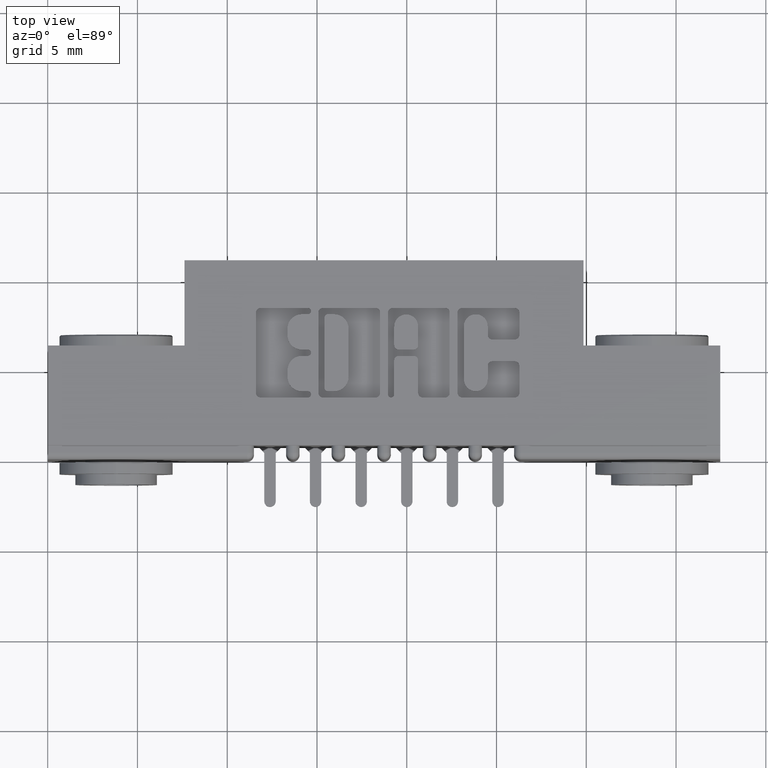
[diagram: clean part render]
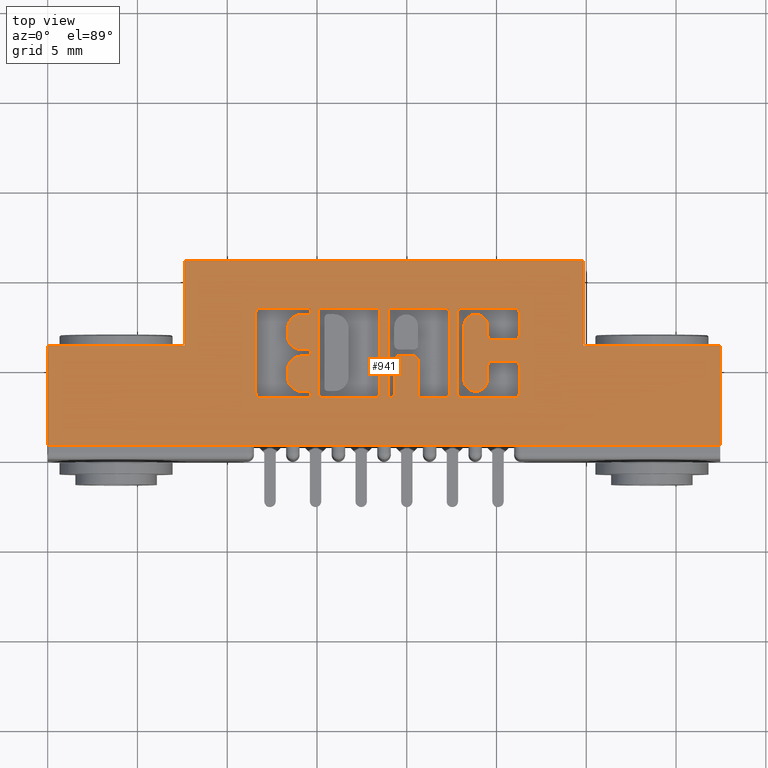
[diagram: same view with one face highlighted and labeled with its STEP entity id]
A machine part, top view. The second image highlights one B-rep face of the part: STEP entity #941.
In plain terms, the highlighted planar face has unit normal (0, 0, -1).
Its self-contained STEP definition (entity closure, byte-faithful):
#33 = DIRECTION ( 'NONE',  ( -1.000000000000000000, 0.0000000000000000000, 0.0000000000000000000 ) ) ;
#66 = LINE ( 'NONE', #6796, #11085 ) ;
#110 = CARTESIAN_POINT ( 'NONE',  ( 1.474999999999999900, 0.2500000000000000000, 0.0000000000000000000 ) ) ;
#117 = DIRECTION ( 'NONE',  ( 0.0000000000000000000, 1.000000000000000000, -0.0000000000000000000 ) ) ;
#128 = CIRCLE ( 'NONE', #9731, 0.009815670203805868300 ) ;
#141 = AXIS2_PLACEMENT_3D ( 'NONE', #12786, #3214, #12714 ) ;
#144 = VECTOR ( 'NONE', #1671, 39.37007874015748100 ) ;
#221 = DIRECTION ( 'NONE',  ( 1.000000000000000000, 0.0000000000000000000, 0.0000000000000000000 ) ) ;
#227 = CARTESIAN_POINT ( 'NONE',  ( 0.8221601555077857600, 0.1358432979619863500, 0.0000000000000000000 ) ) ;
#265 = DIRECTION ( 'NONE',  ( 1.000000000000000000, 0.0000000000000000000, 0.0000000000000000000 ) ) ;
#281 = DIRECTION ( 'NONE',  ( 0.0000000000000000000, -1.000000000000000000, 0.0000000000000000000 ) ) ;
#282 = CARTESIAN_POINT ( 'NONE',  ( 1.024362961706156700, 0.2153502266127593200, 0.0000000000000000000 ) ) ;
#299 = CIRCLE ( 'NONE', #9561, 0.006870969142648501700 ) ;
#321 = PLANE ( 'NONE',  #141 ) ;
#341 = CARTESIAN_POINT ( 'NONE',  ( 0.9085380533012653600, 0.1456589681657917100, 0.0000000000000000000 ) ) ;
#387 = LINE ( 'NONE', #2262, #144 ) ;
#477 = CARTESIAN_POINT ( 'NONE',  ( -0.0000000000000000000, 0.1358432979619849400, 0.0000000000000000000 ) ) ;
#508 = ORIENTED_EDGE ( 'NONE', *, *, #4367, .F. ) ;
#515 = VERTEX_POINT ( 'NONE', #1427 ) ;
#544 = CIRCLE ( 'NONE', #9739, 0.006870969142662229500 ) ;
#572 = VERTEX_POINT ( 'NONE', #3741 ) ;
#585 = CARTESIAN_POINT ( 'NONE',  ( 0.5571370600051254200, 0.3184147637527374200, 0.0000000000000000000 ) ) ;
#611 = DIRECTION ( 'NONE',  ( -1.000000000000000000, -3.427012734660361200E-014, 0.0000000000000000000 ) ) ;
#618 = VERTEX_POINT ( 'NONE', #11272 ) ;
#638 = LINE ( 'NONE', #3824, #6805 ) ;
#661 = CARTESIAN_POINT ( 'NONE',  ( 0.5934550397591692400, 0.3223410318342118700, 0.0000000000000000000 ) ) ;
#663 = DIRECTION ( 'NONE',  ( 1.000000000000000000, 0.0000000000000000000, 0.0000000000000000000 ) ) ;
#674 = DIRECTION ( 'NONE',  ( -0.0000000000000000000, 0.0000000000000000000, 1.000000000000000000 ) ) ;
#722 = CARTESIAN_POINT ( 'NONE',  ( 0.8025288151001878100, 0.2173133606535545500, 0.0000000000000000000 ) ) ;
#731 = CARTESIAN_POINT ( 'NONE',  ( 0.4565264404161154500, 0.0000000000000000000, 0.0000000000000000000 ) ) ;
#765 = DIRECTION ( 'NONE',  ( 1.000000000000000000, 0.0000000000000000000, 0.0000000000000000000 ) ) ;
#780 = VERTEX_POINT ( 'NONE', #10994 ) ;
#807 = ORIENTED_EDGE ( 'NONE', *, *, #4434, .F. ) ;
#838 = CARTESIAN_POINT ( 'NONE',  ( 0.4565264404161154500, 0.3223410318342118700, 0.0000000000000000000 ) ) ;
#848 = VECTOR ( 'NONE', #8968, 39.37007874015748100 ) ;
#894 = CIRCLE ( 'NONE', #9876, 0.03141014465218178200 ) ;
#908 = CARTESIAN_POINT ( 'NONE',  ( 1.024362961706153200, 0.2055345564089722000, 0.0000000000000000000 ) ) ;
#912 = LINE ( 'NONE', #8986, #848 ) ;
#925 = VERTEX_POINT ( 'NONE', #3194 ) ;
#940 = CARTESIAN_POINT ( 'NONE',  ( -7.783740811591157300E-015, 0.2271290308573240500, 0.0000000000000000000 ) ) ;
#941 = ADVANCED_FACE ( 'NONE', ( #3421, #3688, #3392, #3260, #3198 ), #321, .F. ) ;
#944 = CARTESIAN_POINT ( 'NONE',  ( 0.7696463199174502500, 0.2271290308573504200, 0.0000000000000000000 ) ) ;
#1027 = DIRECTION ( 'NONE',  ( 1.000000000000000000, 0.0000000000000000000, 0.0000000000000000000 ) ) ;
#1037 = LINE ( 'NONE', #4303, #1846 ) ;
#1044 = DIRECTION ( 'NONE',  ( -0.0000000000000000000, 0.0000000000000000000, 1.000000000000000000 ) ) ;
#1047 = DIRECTION ( 'NONE',  ( -1.000000000000000000, 0.0000000000000000000, 0.0000000000000000000 ) ) ;
#1050 = CIRCLE ( 'NONE', #8831, 0.009815670203840902800 ) ;
#1068 = VECTOR ( 'NONE', #5166, 39.37007874015748100 ) ;
#1082 = CARTESIAN_POINT ( 'NONE',  ( 0.5775045756779998400, 0.3252857328953879800, 0.0000000000000000000 ) ) ;
#1132 = CARTESIAN_POINT ( 'NONE',  ( 0.4663421106199222000, 0.1456589681657917100, 0.0000000000000000000 ) ) ;
#1142 = DIRECTION ( 'NONE',  ( 1.000000000000000000, 0.0000000000000000000, 0.0000000000000000000 ) ) ;
#1144 = VECTOR ( 'NONE', #10899, 39.37007874015748100 ) ;
#1181 = DIRECTION ( 'NONE',  ( -0.0000000000000000000, 0.0000000000000000000, 1.000000000000000000 ) ) ;
#1197 = CARTESIAN_POINT ( 'NONE',  ( 0.7190956183678621800, 0.1456589681657917100, 0.0000000000000000000 ) ) ;
#1255 = DIRECTION ( 'NONE',  ( -0.0000000000000000000, 0.0000000000000000000, 1.000000000000000000 ) ) ;
#1256 = LINE ( 'NONE', #11013, #1144 ) ;
#1258 = EDGE_CURVE ( 'NONE', #2586, #7496, #12343, .T. ) ;
#1337 = DIRECTION ( 'NONE',  ( -0.0000000000000000000, 0.0000000000000000000, 1.000000000000000000 ) ) ;
#1427 = CARTESIAN_POINT ( 'NONE',  ( 0.5775045756779735300, 0.2340000000000221100, 0.0000000000000000000 ) ) ;
#1461 = CARTESIAN_POINT ( 'NONE',  ( -0.0000000000000000000, 0.1358432979619849400, 0.0000000000000000000 ) ) ;
#1462 = LINE ( 'NONE', #4976, #1068 ) ;
#1505 = DIRECTION ( 'NONE',  ( 0.0000000000000000000, 1.000000000000000000, -0.0000000000000000000 ) ) ;
#1512 = DIRECTION ( 'NONE',  ( -0.0000000000000000000, 0.0000000000000000000, 1.000000000000000000 ) ) ;
#1544 = CARTESIAN_POINT ( 'NONE',  ( 0.7289112885716689800, 0.0000000000000000000, 0.0000000000000000000 ) ) ;
#1560 = CARTESIAN_POINT ( 'NONE',  ( 1.474999999999999900, 0.03100000000000003800, -6.829619984160658000E-017 ) ) ;
#1590 = CARTESIAN_POINT ( 'NONE',  ( 0.9747938271769670500, 0.2055345564089713100, 0.0000000000000000000 ) ) ;
#1636 = CARTESIAN_POINT ( 'NONE',  ( 0.9124643213828184100, 0.0000000000000000000, 0.0000000000000000000 ) ) ;
#1671 = DIRECTION ( 'NONE',  ( 1.000000000000000000, 6.876017002796120400E-015, 0.0000000000000000000 ) ) ;
#1726 = CARTESIAN_POINT ( 'NONE',  ( 0.9747938271769776000, 0.2727718973050469700, 0.0000000000000000000 ) ) ;
#1737 = ORIENTED_EDGE ( 'NONE', *, *, #3396, .F. ) ;
#1825 = CIRCLE ( 'NONE', #8107, 0.009815670203796511200 ) ;
#1846 = VECTOR ( 'NONE', #4245, 39.37007874015748100 ) ;
#1871 = VERTEX_POINT ( 'NONE', #10935 ) ;
#1907 = EDGE_LOOP ( 'NONE', ( #5786, #8278, #10205, #10430, #3225, #5997, #7012, #9164, #10955, #11898, #5125, #4279, #5473, #11957, #2570, #2928, #5519, #12710, #1737, #2791 ) ) ;
#1990 = DIRECTION ( 'NONE',  ( 1.000000000000000000, 0.0000000000000000000, 0.0000000000000000000 ) ) ;
#1993 = CIRCLE ( 'NONE', #7226, 0.006870969142663527000 ) ;
#2040 = DIRECTION ( 'NONE',  ( -0.0000000000000000000, 0.0000000000000000000, 1.000000000000000000 ) ) ;
#2062 = CARTESIAN_POINT ( 'NONE',  ( 0.8123444853039847300, 0.0000000000000000000, 0.0000000000000000000 ) ) ;
#2101 = DIRECTION ( 'NONE',  ( 0.0000000000000000000, 1.000000000000000000, -0.0000000000000000000 ) ) ;
#2117 = DIRECTION ( 'NONE',  ( 1.000000000000000000, 0.0000000000000000000, 0.0000000000000000000 ) ) ;
#2119 = CARTESIAN_POINT ( 'NONE',  ( 0.0000000000000000000, 0.2500000000000000000, 0.0000000000000000000 ) ) ;
#2122 = EDGE_CURVE ( 'NONE', #925, #8673, #10608, .T. ) ;
#2140 = CIRCLE ( 'NONE', #10087, 0.03141014465215624000 ) ;
#2178 = ORIENTED_EDGE ( 'NONE', *, *, #4344, .F. ) ;
#2192 = ORIENTED_EDGE ( 'NONE', *, *, #4326, .F. ) ;
#2205 = CARTESIAN_POINT ( 'NONE',  ( 0.5706336065353355700, 0.1427142671046497100, 0.0000000000000000000 ) ) ;
#2222 = DIRECTION ( 'NONE',  ( 1.000000000000000000, 0.0000000000000000000, 0.0000000000000000000 ) ) ;
#2252 = VERTEX_POINT ( 'NONE', #11694 ) ;
#2262 = CARTESIAN_POINT ( 'NONE',  ( -9.340608265024984900E-016, 0.1358432979619835200, 0.0000000000000000000 ) ) ;
#2279 = DIRECTION ( 'NONE',  ( -0.0000000000000000000, 0.0000000000000000000, 1.000000000000000000 ) ) ;
#2282 = CARTESIAN_POINT ( 'NONE',  ( 0.7190956183678279800, 0.3223410318342117000, 0.0000000000000000000 ) ) ;
#2305 = VECTOR ( 'NONE', #7698, 39.37007874015748100 ) ;
#2320 = CARTESIAN_POINT ( 'NONE',  ( 0.0000000000000000000, 0.3321567020380528100, 0.0000000000000000000 ) ) ;
#2339 = ORIENTED_EDGE ( 'NONE', *, *, #4933, .F. ) ;
#2344 = CARTESIAN_POINT ( 'NONE',  ( 1.034178631909940200, 0.0000000000000000000, 0.0000000000000000000 ) ) ;
#2371 = DIRECTION ( 'NONE',  ( 0.0000000000000000000, 1.000000000000000000, -0.0000000000000000000 ) ) ;
#2379 = ORIENTED_EDGE ( 'NONE', *, *, #3751, .F. ) ;
#2423 = LINE ( 'NONE', #7631, #2305 ) ;
#2426 = EDGE_CURVE ( 'NONE', #11852, #5507, #8967, .T. ) ;
#2436 = CARTESIAN_POINT ( 'NONE',  ( -0.0000000000000000000, 0.3321567020380083400, 0.0000000000000000000 ) ) ;
#2445 = AXIS2_PLACEMENT_3D ( 'NONE', #12685, #7601, #765 ) ;
#2447 = CIRCLE ( 'NONE', #10192, 0.006870969142663527000 ) ;
#2453 = CARTESIAN_POINT ( 'NONE',  ( 0.7289112885716689800, 0.1456589681657917100, 0.0000000000000000000 ) ) ;
#2471 = CIRCLE ( 'NONE', #8399, 0.009815670203796920600 ) ;
#2483 = VERTEX_POINT ( 'NONE', #6518 ) ;
#2511 = EDGE_CURVE ( 'NONE', #1871, #5507, #8523, .T. ) ;
#2570 = ORIENTED_EDGE ( 'NONE', *, *, #3090, .F. ) ;
#2579 = EDGE_CURVE ( 'NONE', #1871, #572, #8441, .T. ) ;
#2586 = VERTEX_POINT ( 'NONE', #7302 ) ;
#2606 = EDGE_CURVE ( 'NONE', #4901, #572, #8177, .T. ) ;
#2620 = CARTESIAN_POINT ( 'NONE',  ( 0.9747938271769776000, 0.2629562271012354000, 0.0000000000000000000 ) ) ;
#2624 = CARTESIAN_POINT ( 'NONE',  ( -0.0000000000000000000, 0.3184147637527374200, 0.0000000000000000000 ) ) ;
#2625 = CARTESIAN_POINT ( 'NONE',  ( 1.175000000000000000, 0.4370000000000000000, -1.836970198721029400E-017 ) ) ;
#2634 = VERTEX_POINT ( 'NONE', #12701 ) ;
#2649 = VECTOR ( 'NONE', #9491, 39.37007874015748100 ) ;
#2654 = LINE ( 'NONE', #10317, #2649 ) ;
#2659 = CIRCLE ( 'NONE', #8213, 0.006870969142657995000 ) ;
#2668 = CARTESIAN_POINT ( 'NONE',  ( 0.7289112885716689800, 0.3223410318342118700, 0.0000000000000000000 ) ) ;
#2686 = VECTOR ( 'NONE', #12042, 39.37007874015748100 ) ;
#2695 = EDGE_CURVE ( 'NONE', #7309, #4901, #7606, .T. ) ;
#2718 = EDGE_CURVE ( 'NONE', #5276, #7309, #7881, .T. ) ;
#2765 = DIRECTION ( 'NONE',  ( 1.000000000000000000, 0.0000000000000000000, 0.0000000000000000000 ) ) ;
#2775 = VERTEX_POINT ( 'NONE', #661 ) ;
#2791 = ORIENTED_EDGE ( 'NONE', *, *, #3413, .F. ) ;
#2842 = VECTOR ( 'NONE', #2101, 39.37007874015748100 ) ;
#2853 = DIRECTION ( 'NONE',  ( 1.000000000000000000, 0.0000000000000000000, 0.0000000000000000000 ) ) ;
#2856 = EDGE_LOOP ( 'NONE', ( #4145, #4499, #4997, #5737, #6193, #7045, #7336, #7371, #8413, #8602, #10713, #3267, #2192, #2178, #508, #5573, #807, #6233, #2379, #3567, #4373 ) ) ;
#2857 = VECTOR ( 'NONE', #12873, 39.37007874015748100 ) ;
#2866 = EDGE_CURVE ( 'NONE', #4028, #5276, #6976, .T. ) ;
#2871 = CIRCLE ( 'NONE', #9034, 0.009815670203841039800 ) ;
#2883 = LINE ( 'NONE', #10266, #10687 ) ;
#2892 = CARTESIAN_POINT ( 'NONE',  ( 0.0000000000000000000, 0.2500000000000000000, 0.0000000000000000000 ) ) ;
#2907 = EDGE_CURVE ( 'NONE', #5734, #4028, #6742, .T. ) ;
#2912 = DIRECTION ( 'NONE',  ( 1.000000000000000000, 0.0000000000000000000, 0.0000000000000000000 ) ) ;
#2928 = ORIENTED_EDGE ( 'NONE', *, *, #3152, .F. ) ;
#2972 = CIRCLE ( 'NONE', #10290, 0.006870969142648501700 ) ;
#2984 = EDGE_CURVE ( 'NONE', #12253, #5734, #6474, .T. ) ;
#3022 = LINE ( 'NONE', #11327, #2686 ) ;
#3069 = EDGE_CURVE ( 'NONE', #780, #12253, #5976, .T. ) ;
#3090 = EDGE_CURVE ( 'NONE', #11532, #780, #5911, .T. ) ;
#3151 = VERTEX_POINT ( 'NONE', #5990 ) ;
#3152 = EDGE_CURVE ( 'NONE', #3383, #11532, #5513, .T. ) ;
#3159 = DIRECTION ( 'NONE',  ( 1.000000000000000000, 0.0000000000000000000, 0.0000000000000000000 ) ) ;
#3179 = DIRECTION ( 'NONE',  ( -0.0000000000000000000, 0.0000000000000000000, 1.000000000000000000 ) ) ;
#3194 = CARTESIAN_POINT ( 'NONE',  ( 0.5775045756779977300, 0.1427142671046497100, 0.0000000000000000000 ) ) ;
#3198 = FACE_BOUND ( 'NONE', #9773, .T. ) ;
#3200 = EDGE_CURVE ( 'NONE', #4945, #3383, #5391, .T. ) ;
#3205 = CARTESIAN_POINT ( 'NONE',  ( 0.8221601555077880900, 0.1456589681657896000, 0.0000000000000000000 ) ) ;
#3214 = DIRECTION ( 'NONE',  ( 0.0000000000000000000, 0.0000000000000000000, -1.000000000000000000 ) ) ;
#3225 = ORIENTED_EDGE ( 'NONE', *, *, #2426, .T. ) ;
#3260 = FACE_BOUND ( 'NONE', #5424, .T. ) ;
#3267 = ORIENTED_EDGE ( 'NONE', *, *, #2122, .F. ) ;
#3294 = LINE ( 'NONE', #6857, #12938 ) ;
#3311 = DIRECTION ( 'NONE',  ( 1.000000000000000000, 0.0000000000000000000, 0.0000000000000000000 ) ) ;
#3313 = CIRCLE ( 'NONE', #10341, 0.03141014465217447500 ) ;
#3314 = VERTEX_POINT ( 'NONE', #11273 ) ;
#3349 = VERTEX_POINT ( 'NONE', #12566 ) ;
#3351 = EDGE_CURVE ( 'NONE', #9521, #4945, #4659, .T. ) ;
#3361 = CIRCLE ( 'NONE', #8937, 0.009815670203806754800 ) ;
#3383 = VERTEX_POINT ( 'NONE', #4843 ) ;
#3392 = FACE_OUTER_BOUND ( 'NONE', #5860, .T. ) ;
#3396 = EDGE_CURVE ( 'NONE', #6984, #9521, #4619, .T. ) ;
#3413 = EDGE_CURVE ( 'NONE', #3151, #6984, #4490, .T. ) ;
#3421 = FACE_BOUND ( 'NONE', #1907, .T. ) ;
#3452 = DIRECTION ( 'NONE',  ( -1.000000000000000000, 0.0000000000000000000, 0.0000000000000000000 ) ) ;
#3461 = EDGE_CURVE ( 'NONE', #4613, #4306, #4314, .T. ) ;
#3501 = DIRECTION ( 'NONE',  ( 1.000000000000000000, 0.0000000000000000000, 0.0000000000000000000 ) ) ;
#3512 = CIRCLE ( 'NONE', #8529, 0.009815670203803340800 ) ;
#3520 = EDGE_CURVE ( 'NONE', #6279, #4306, #3710, .T. ) ;
#3523 = CARTESIAN_POINT ( 'NONE',  ( 0.7460887114283310000, 0.3223410318342118700, 0.0000000000000000000 ) ) ;
#3535 = ORIENTED_EDGE ( 'NONE', *, *, #4953, .T. ) ;
#3542 = VECTOR ( 'NONE', #4069, 39.37007874015748100 ) ;
#3567 = ORIENTED_EDGE ( 'NONE', *, *, #4528, .F. ) ;
#3627 = VERTEX_POINT ( 'NONE', #944 ) ;
#3652 = CARTESIAN_POINT ( 'NONE',  ( 0.6032707099630102400, 0.3223410318342118700, 0.0000000000000000000 ) ) ;
#3661 = VERTEX_POINT ( 'NONE', #4996 ) ;
#3670 = EDGE_CURVE ( 'NONE', #6279, #5872, #3313, .T. ) ;
#3688 = FACE_BOUND ( 'NONE', #2856, .T. ) ;
#3695 = VECTOR ( 'NONE', #117, 39.37007874015748100 ) ;
#3710 = LINE ( 'NONE', #12101, #3695 ) ;
#3733 = DIRECTION ( 'NONE',  ( -0.0000000000000000000, 0.0000000000000000000, 1.000000000000000000 ) ) ;
#3735 = VECTOR ( 'NONE', #2117, 39.37007874015748100 ) ;
#3741 = CARTESIAN_POINT ( 'NONE',  ( 0.9649781569731790100, 0.1758421540424547600, 0.0000000000000000000 ) ) ;
#3751 = EDGE_CURVE ( 'NONE', #12250, #2483, #2972, .T. ) ;
#3784 = EDGE_CURVE ( 'NONE', #4871, #5872, #2654, .T. ) ;
#3824 = CARTESIAN_POINT ( 'NONE',  ( -0.0000000000000000000, 0.2629562271012354000, 0.0000000000000000000 ) ) ;
#3825 = CARTESIAN_POINT ( 'NONE',  ( 0.2999999999999999900, 0.2500000000000000000, 0.0000000000000000000 ) ) ;
#3828 = EDGE_CURVE ( 'NONE', #6456, #515, #2447, .T. ) ;
#3864 = DIRECTION ( 'NONE',  ( 1.000000000000000000, 0.0000000000000000000, 0.0000000000000000000 ) ) ;
#3868 = EDGE_CURVE ( 'NONE', #7275, #6456, #2423, .T. ) ;
#3907 = EDGE_CURVE ( 'NONE', #7275, #8930, #2140, .T. ) ;
#3960 = CARTESIAN_POINT ( 'NONE',  ( 0.5571370600050841200, 0.2408709691426856000, 0.0000000000000000000 ) ) ;
#4022 = DIRECTION ( 'NONE',  ( 1.000000000000000000, 0.0000000000000000000, 0.0000000000000000000 ) ) ;
#4028 = VERTEX_POINT ( 'NONE', #12872 ) ;
#4044 = VECTOR ( 'NONE', #8718, 39.37007874015748100 ) ;
#4047 = CARTESIAN_POINT ( 'NONE',  ( 0.8123444853039847300, 0.2173133606535452000, 0.0000000000000000000 ) ) ;
#4069 = DIRECTION ( 'NONE',  ( -0.0000000000000000000, 1.000000000000000000, -0.0000000000000000000 ) ) ;
#4080 = VERTEX_POINT ( 'NONE', #12586 ) ;
#4100 = EDGE_CURVE ( 'NONE', #10481, #8930, #1256, .T. ) ;
#4145 = ORIENTED_EDGE ( 'NONE', *, *, #3461, .T. ) ;
#4158 = EDGE_CURVE ( 'NONE', #10481, #4272, #894, .T. ) ;
#4172 = EDGE_CURVE ( 'NONE', #8673, #4272, #912, .T. ) ;
#4245 = DIRECTION ( 'NONE',  ( -1.000000000000000000, 0.0000000000000000000, 0.0000000000000000000 ) ) ;
#4272 = VERTEX_POINT ( 'NONE', #6314 ) ;
#4279 = ORIENTED_EDGE ( 'NONE', *, *, #2907, .F. ) ;
#4303 = CARTESIAN_POINT ( 'NONE',  ( 0.0000000000000000000, 0.1358432979619863500, 0.0000000000000000000 ) ) ;
#4306 = VERTEX_POINT ( 'NONE', #4503 ) ;
#4314 = CIRCLE ( 'NONE', #10662, 0.03141014465221585900 ) ;
#4326 = EDGE_CURVE ( 'NONE', #9701, #925, #544, .T. ) ;
#4344 = EDGE_CURVE ( 'NONE', #7246, #9701, #387, .T. ) ;
#4367 = EDGE_CURVE ( 'NONE', #4828, #7246, #128, .T. ) ;
#4371 = VECTOR ( 'NONE', #9953, 39.37007874015748100 ) ;
#4373 = ORIENTED_EDGE ( 'NONE', *, *, #4567, .F. ) ;
#4374 = CIRCLE ( 'NONE', #8305, 0.009815670203803203800 ) ;
#4395 = EDGE_CURVE ( 'NONE', #5237, #4828, #11727, .T. ) ;
#4401 = VERTEX_POINT ( 'NONE', #110 ) ;
#4434 = EDGE_CURVE ( 'NONE', #8347, #5237, #10838, .T. ) ;
#4458 = EDGE_CURVE ( 'NONE', #2483, #8347, #6048, .T. ) ;
#4490 = LINE ( 'NONE', #12330, #4371 ) ;
#4499 = ORIENTED_EDGE ( 'NONE', *, *, #3520, .F. ) ;
#4503 = CARTESIAN_POINT ( 'NONE',  ( 0.5257269153529096100, 0.2870046191005216100, 0.0000000000000000000 ) ) ;
#4506 = CARTESIAN_POINT ( 'NONE',  ( 0.9649781569731790100, 0.0000000000000000000, 0.0000000000000000000 ) ) ;
#4508 = VECTOR ( 'NONE', #11575, 39.37007874015748100 ) ;
#4528 = EDGE_CURVE ( 'NONE', #4752, #12250, #299, .T. ) ;
#4567 = EDGE_CURVE ( 'NONE', #4613, #4752, #6678, .T. ) ;
#4613 = VERTEX_POINT ( 'NONE', #585 ) ;
#4619 = CIRCLE ( 'NONE', #10759, 0.009815670203840084000 ) ;
#4636 = VECTOR ( 'NONE', #1047, 39.37007874015748100 ) ;
#4657 = EDGE_CURVE ( 'NONE', #7575, #2634, #10280, .T. ) ;
#4659 = LINE ( 'NONE', #6396, #4636 ) ;
#4741 = EDGE_CURVE ( 'NONE', #10381, #2634, #2883, .T. ) ;
#4752 = VERTEX_POINT ( 'NONE', #10259 ) ;
#4756 = LINE ( 'NONE', #1544, #9856 ) ;
#4775 = VERTEX_POINT ( 'NONE', #9837 ) ;
#4817 = CARTESIAN_POINT ( 'NONE',  ( 0.5257269153529278100, 0.1957188862052023100, 0.0000000000000000000 ) ) ;
#4828 = VERTEX_POINT ( 'NONE', #8445 ) ;
#4843 = CARTESIAN_POINT ( 'NONE',  ( 0.8987223830974585500, 0.3223410318342118700, 0.0000000000000000000 ) ) ;
#4871 = VERTEX_POINT ( 'NONE', #7650 ) ;
#4882 = CARTESIAN_POINT ( 'NONE',  ( 0.9747938271769670500, 0.2153502266127593200, 0.0000000000000000000 ) ) ;
#4892 = DIRECTION ( 'NONE',  ( 1.000000000000000000, 0.0000000000000000000, 0.0000000000000000000 ) ) ;
#4901 = VERTEX_POINT ( 'NONE', #7390 ) ;
#4909 = EDGE_CURVE ( 'NONE', #4401, #10381, #66, .T. ) ;
#4933 = EDGE_CURVE ( 'NONE', #6236, #4401, #11338, .T. ) ;
#4945 = VERTEX_POINT ( 'NONE', #6215 ) ;
#4953 = EDGE_CURVE ( 'NONE', #6236, #6389, #5652, .T. ) ;
#4976 = CARTESIAN_POINT ( 'NONE',  ( 0.0000000000000000000, 0.4370000000000000000, 0.0000000000000000000 ) ) ;
#4996 = CARTESIAN_POINT ( 'NONE',  ( 0.8123444853039847300, 0.1456589681657896000, 0.0000000000000000000 ) ) ;
#4997 = ORIENTED_EDGE ( 'NONE', *, *, #3670, .T. ) ;
#5009 = EDGE_CURVE ( 'NONE', #11547, #6389, #1462, .T. ) ;
#5093 = EDGE_CURVE ( 'NONE', #3349, #11547, #11209, .T. ) ;
#5125 = ORIENTED_EDGE ( 'NONE', *, *, #2866, .F. ) ;
#5139 = EDGE_CURVE ( 'NONE', #7575, #3349, #8249, .T. ) ;
#5159 = EDGE_CURVE ( 'NONE', #8236, #5565, #2871, .T. ) ;
#5166 = DIRECTION ( 'NONE',  ( 1.000000000000000000, 0.0000000000000000000, 0.0000000000000000000 ) ) ;
#5198 = EDGE_CURVE ( 'NONE', #7536, #8236, #4756, .T. ) ;
#5218 = EDGE_CURVE ( 'NONE', #6833, #7536, #6995, .T. ) ;
#5236 = LINE ( 'NONE', #8861, #8071 ) ;
#5237 = VERTEX_POINT ( 'NONE', #838 ) ;
#5244 = CARTESIAN_POINT ( 'NONE',  ( 0.5571370600050841200, 0.2271290308573585800, 0.0000000000000000000 ) ) ;
#5262 = EDGE_CURVE ( 'NONE', #8061, #6833, #6298, .T. ) ;
#5268 = DIRECTION ( 'NONE',  ( 1.000000000000000000, 0.0000000000000000000, 0.0000000000000000000 ) ) ;
#5276 = VERTEX_POINT ( 'NONE', #282 ) ;
#5294 = EDGE_CURVE ( 'NONE', #4775, #8061, #3361, .T. ) ;
#5312 = EDGE_CURVE ( 'NONE', #2775, #4775, #3022, .T. ) ;
#5374 = DIRECTION ( 'NONE',  ( 1.000000000000000000, 0.0000000000000000000, 0.0000000000000000000 ) ) ;
#5376 = CARTESIAN_POINT ( 'NONE',  ( 0.5571370600050841200, 0.1957188862052023100, 0.0000000000000000000 ) ) ;
#5381 = VERTEX_POINT ( 'NONE', #6326 ) ;
#5389 = EDGE_CURVE ( 'NONE', #12277, #2775, #1050, .T. ) ;
#5391 = CIRCLE ( 'NONE', #10983, 0.009815670203840902800 ) ;
#5417 = EDGE_CURVE ( 'NONE', #5565, #12277, #9437, .T. ) ;
#5424 = EDGE_LOOP ( 'NONE', ( #10693, #7424, #7555, #8694, #8776, #8867, #8909, #9019 ) ) ;
#5433 = DIRECTION ( 'NONE',  ( -0.0000000000000000000, 0.0000000000000000000, 1.000000000000000000 ) ) ;
#5443 = VECTOR ( 'NONE', #8951, 39.37007874015748100 ) ;
#5455 = VECTOR ( 'NONE', #2765, 39.37007874015748100 ) ;
#5473 = ORIENTED_EDGE ( 'NONE', *, *, #2984, .F. ) ;
#5487 = EDGE_CURVE ( 'NONE', #618, #6814, #11200, .T. ) ;
#5507 = VERTEX_POINT ( 'NONE', #12853 ) ;
#5513 = LINE ( 'NONE', #7731, #5443 ) ;
#5516 = VERTEX_POINT ( 'NONE', #12794 ) ;
#5519 = ORIENTED_EDGE ( 'NONE', *, *, #3200, .F. ) ;
#5556 = DIRECTION ( 'NONE',  ( -0.0000000000000000000, 0.0000000000000000000, 1.000000000000000000 ) ) ;
#5565 = VERTEX_POINT ( 'NONE', #12021 ) ;
#5573 = ORIENTED_EDGE ( 'NONE', *, *, #4395, .F. ) ;
#5594 = CARTESIAN_POINT ( 'NONE',  ( 1.024362961706132100, 0.3223410318342127500, 0.0000000000000000000 ) ) ;
#5604 = EDGE_CURVE ( 'NONE', #3314, #6814, #10139, .T. ) ;
#5615 = CARTESIAN_POINT ( 'NONE',  ( 0.5706336064154143900, 0.1495852362473119600, 0.0000000000000000000 ) ) ;
#5616 = CARTESIAN_POINT ( 'NONE',  ( 0.5706336065353513300, 0.3252857328953879800, 0.0000000000000000000 ) ) ;
#5623 = CIRCLE ( 'NONE', #8565, 0.009815670203796237100 ) ;
#5649 = EDGE_CURVE ( 'NONE', #3314, #8710, #8964, .T. ) ;
#5652 = LINE ( 'NONE', #6096, #6308 ) ;
#5694 = EDGE_CURVE ( 'NONE', #5381, #8710, #5623, .T. ) ;
#5734 = VERTEX_POINT ( 'NONE', #6345 ) ;
#5737 = ORIENTED_EDGE ( 'NONE', *, *, #3784, .F. ) ;
#5781 = CARTESIAN_POINT ( 'NONE',  ( 1.024362961706134300, 0.1358432979619849400, 0.0000000000000000000 ) ) ;
#5786 = ORIENTED_EDGE ( 'NONE', *, *, #11403, .F. ) ;
#5800 = DIRECTION ( 'NONE',  ( -0.0000000000000000000, 0.0000000000000000000, 1.000000000000000000 ) ) ;
#5844 = ORIENTED_EDGE ( 'NONE', *, *, #4657, .T. ) ;
#5860 = EDGE_LOOP ( 'NONE', ( #5844, #7457, #7612, #2339, #3535, #6719, #7208, #7846 ) ) ;
#5866 = EDGE_CURVE ( 'NONE', #5381, #12450, #1037, .T. ) ;
#5872 = VERTEX_POINT ( 'NONE', #3960 ) ;
#5880 = EDGE_CURVE ( 'NONE', #7496, #7142, #638, .T. ) ;
#5911 = CIRCLE ( 'NONE', #11106, 0.009815670203806754800 ) ;
#5915 = EDGE_CURVE ( 'NONE', #3661, #12450, #3512, .T. ) ;
#5937 = VECTOR ( 'NONE', #4022, 39.37007874015748100 ) ;
#5949 = EDGE_CURVE ( 'NONE', #3661, #10443, #6118, .T. ) ;
#5955 = DIRECTION ( 'NONE',  ( -0.0000000000000000000, 1.000000000000000000, -0.0000000000000000000 ) ) ;
#5969 = EDGE_CURVE ( 'NONE', #10443, #2252, #2471, .T. ) ;
#5973 = CARTESIAN_POINT ( 'NONE',  ( 0.4663421106199185900, 0.1358432979619867400, 0.0000000000000000000 ) ) ;
#5976 = LINE ( 'NONE', #1461, #5937 ) ;
#5990 = CARTESIAN_POINT ( 'NONE',  ( 1.034178631909972200, 0.2727718973050404200, 0.0000000000000000000 ) ) ;
#5992 = EDGE_CURVE ( 'NONE', #2252, #3627, #8229, .T. ) ;
#5997 = ORIENTED_EDGE ( 'NONE', *, *, #2511, .F. ) ;
#6042 = EDGE_CURVE ( 'NONE', #3627, #4080, #4374, .T. ) ;
#6048 = LINE ( 'NONE', #10896, #4508 ) ;
#6096 = CARTESIAN_POINT ( 'NONE',  ( 1.175000000000000000, 0.2500000000000000000, -1.836970198721029400E-017 ) ) ;
#6117 = EDGE_CURVE ( 'NONE', #4080, #9434, #6275, .T. ) ;
#6118 = LINE ( 'NONE', #2062, #2842 ) ;
#6141 = EDGE_CURVE ( 'NONE', #5516, #9434, #2659, .T. ) ;
#6144 = DIRECTION ( 'NONE',  ( 1.000000000000000000, -0.0000000000000000000, 6.123233995736766000E-017 ) ) ;
#6165 = EDGE_CURVE ( 'NONE', #5516, #8096, #5236, .T. ) ;
#6183 = CARTESIAN_POINT ( 'NONE',  ( 0.4663421106199380800, 0.3321567020380344900, 0.0000000000000000000 ) ) ;
#6193 = ORIENTED_EDGE ( 'NONE', *, *, #7097, .F. ) ;
#6196 = CARTESIAN_POINT ( 'NONE',  ( 0.5706336064154143900, 0.1358432979619874600, 0.0000000000000000000 ) ) ;
#6197 = EDGE_CURVE ( 'NONE', #618, #8096, #1825, .T. ) ;
#6215 = CARTESIAN_POINT ( 'NONE',  ( 0.9085380533012994400, 0.3321567020380528100, 0.0000000000000000000 ) ) ;
#6233 = ORIENTED_EDGE ( 'NONE', *, *, #4458, .F. ) ;
#6236 = VERTEX_POINT ( 'NONE', #10423 ) ;
#6275 = LINE ( 'NONE', #10591, #11056 ) ;
#6279 = VERTEX_POINT ( 'NONE', #7088 ) ;
#6289 = DIRECTION ( 'NONE',  ( 1.000000000000000000, 0.0000000000000000000, 0.0000000000000000000 ) ) ;
#6298 = LINE ( 'NONE', #477, #8681 ) ;
#6308 = VECTOR ( 'NONE', #5955, 39.37007874015748100 ) ;
#6314 = CARTESIAN_POINT ( 'NONE',  ( 0.5571370600051096500, 0.1495852362473103800, 0.0000000000000000000 ) ) ;
#6326 = CARTESIAN_POINT ( 'NONE',  ( 0.8717292900370105000, 0.1358432979619863500, 0.0000000000000000000 ) ) ;
#6345 = CARTESIAN_POINT ( 'NONE',  ( 1.034178631909940200, 0.1456589681657847500, 0.0000000000000000000 ) ) ;
#6374 = DIRECTION ( 'NONE',  ( 1.000000000000000000, 0.0000000000000000000, 0.0000000000000000000 ) ) ;
#6389 = VERTEX_POINT ( 'NONE', #2625 ) ;
#6396 = CARTESIAN_POINT ( 'NONE',  ( 0.0000000000000000000, 0.3321567020380528100, 0.0000000000000000000 ) ) ;
#6454 = DIRECTION ( 'NONE',  ( 1.000000000000000000, 0.0000000000000000000, 0.0000000000000000000 ) ) ;
#6456 = VERTEX_POINT ( 'NONE', #12928 ) ;
#6474 = CIRCLE ( 'NONE', #11169, 0.009815670203806345400 ) ;
#6512 = DIRECTION ( 'NONE',  ( 0.0000000000000000000, -1.000000000000000000, 0.0000000000000000000 ) ) ;
#6518 = CARTESIAN_POINT ( 'NONE',  ( 0.5706336065353513300, 0.3321567020380344900, 0.0000000000000000000 ) ) ;
#6588 = CARTESIAN_POINT ( 'NONE',  ( 0.9387212391779987700, 0.1758421540424547600, 0.0000000000000000000 ) ) ;
#6616 = VECTOR ( 'NONE', #2371, 39.37007874015748100 ) ;
#6655 = CARTESIAN_POINT ( 'NONE',  ( 1.474999999999999900, 0.2500000000000000000, 0.0000000000000000000 ) ) ;
#6678 = LINE ( 'NONE', #2624, #3735 ) ;
#6719 = ORIENTED_EDGE ( 'NONE', *, *, #5009, .F. ) ;
#6742 = LINE ( 'NONE', #2344, #6616 ) ;
#6782 = CARTESIAN_POINT ( 'NONE',  ( 0.2999999999999999900, 0.4370000000000000000, 0.0000000000000000000 ) ) ;
#6796 = CARTESIAN_POINT ( 'NONE',  ( 1.474999999999999900, 0.4370000000000000000, 0.0000000000000000000 ) ) ;
#6805 = VECTOR ( 'NONE', #3864, 39.37007874015748100 ) ;
#6814 = VERTEX_POINT ( 'NONE', #10066 ) ;
#6815 = DIRECTION ( 'NONE',  ( -0.0000000000000000000, -1.000000000000000000, -0.0000000000000000000 ) ) ;
#6816 = VECTOR ( 'NONE', #3452, 39.37007874015748100 ) ;
#6831 = CARTESIAN_POINT ( 'NONE',  ( 0.7598306497136468900, 0.1427142671046497100, 0.0000000000000000000 ) ) ;
#6833 = VERTEX_POINT ( 'NONE', #9893 ) ;
#6853 = DIRECTION ( 'NONE',  ( -0.0000000000000000000, 0.0000000000000000000, 1.000000000000000000 ) ) ;
#6857 = CARTESIAN_POINT ( 'NONE',  ( 0.9649781569731659100, 0.0000000000000000000, 0.0000000000000000000 ) ) ;
#6976 = CIRCLE ( 'NONE', #11307, 0.009815670203787221800 ) ;
#6984 = VERTEX_POINT ( 'NONE', #8592 ) ;
#6987 = DIRECTION ( 'NONE',  ( 1.000000000000000000, 0.0000000000000000000, 0.0000000000000000000 ) ) ;
#6995 = CIRCLE ( 'NONE', #9013, 0.009815670203806891800 ) ;
#7012 = ORIENTED_EDGE ( 'NONE', *, *, #2579, .T. ) ;
#7019 = DIRECTION ( 'NONE',  ( -0.0000000000000000000, 0.0000000000000000000, 1.000000000000000000 ) ) ;
#7023 = CARTESIAN_POINT ( 'NONE',  ( 0.8717292900370105000, 0.1456589681657826100, 0.0000000000000000000 ) ) ;
#7045 = ORIENTED_EDGE ( 'NONE', *, *, #3828, .F. ) ;
#7088 = CARTESIAN_POINT ( 'NONE',  ( 0.5257269153529096100, 0.2722811137948600900, 0.0000000000000000000 ) ) ;
#7092 = CARTESIAN_POINT ( 'NONE',  ( 1.024362961706167100, 0.2629562271012354000, 0.0000000000000000000 ) ) ;
#7095 = DIRECTION ( 'NONE',  ( -0.0000000000000000000, 0.0000000000000000000, 1.000000000000000000 ) ) ;
#7097 = EDGE_CURVE ( 'NONE', #515, #4871, #1993, .T. ) ;
#7142 = VERTEX_POINT ( 'NONE', #7092 ) ;
#7169 = EDGE_CURVE ( 'NONE', #11852, #2586, #3294, .T. ) ;
#7208 = ORIENTED_EDGE ( 'NONE', *, *, #5093, .F. ) ;
#7226 = AXIS2_PLACEMENT_3D ( 'NONE', #7481, #7462, #7413 ) ;
#7246 = VERTEX_POINT ( 'NONE', #5973 ) ;
#7275 = VERTEX_POINT ( 'NONE', #5244 ) ;
#7302 = CARTESIAN_POINT ( 'NONE',  ( 0.9649781569731659100, 0.2727718973050469700, 0.0000000000000000000 ) ) ;
#7309 = VERTEX_POINT ( 'NONE', #4882 ) ;
#7336 = ORIENTED_EDGE ( 'NONE', *, *, #3868, .F. ) ;
#7340 = CIRCLE ( 'NONE', #2445, 0.009815670203804980100 ) ;
#7371 = ORIENTED_EDGE ( 'NONE', *, *, #3907, .T. ) ;
#7390 = CARTESIAN_POINT ( 'NONE',  ( 0.9649781569731790100, 0.2055345564089704500, 0.0000000000000000000 ) ) ;
#7413 = DIRECTION ( 'NONE',  ( 1.000000000000000000, 0.0000000000000000000, 0.0000000000000000000 ) ) ;
#7424 = ORIENTED_EDGE ( 'NONE', *, *, #5198, .F. ) ;
#7457 = ORIENTED_EDGE ( 'NONE', *, *, #4741, .F. ) ;
#7462 = DIRECTION ( 'NONE',  ( -0.0000000000000000000, 0.0000000000000000000, 1.000000000000000000 ) ) ;
#7475 = VECTOR ( 'NONE', #33, 39.37007874015748100 ) ;
#7481 = CARTESIAN_POINT ( 'NONE',  ( 0.5706336065353100300, 0.2340000000000221100, 0.0000000000000000000 ) ) ;
#7496 = VERTEX_POINT ( 'NONE', #2620 ) ;
#7519 = CARTESIAN_POINT ( 'NONE',  ( 0.9085380533012994400, 0.3223410318342118700, 0.0000000000000000000 ) ) ;
#7536 = VERTEX_POINT ( 'NONE', #2453 ) ;
#7555 = ORIENTED_EDGE ( 'NONE', *, *, #5218, .F. ) ;
#7575 = VERTEX_POINT ( 'NONE', #2119 ) ;
#7601 = DIRECTION ( 'NONE',  ( -0.0000000000000000000, 0.0000000000000000000, 1.000000000000000000 ) ) ;
#7606 = CIRCLE ( 'NONE', #11563, 0.009815670203788042300 ) ;
#7612 = ORIENTED_EDGE ( 'NONE', *, *, #4909, .F. ) ;
#7617 = DIRECTION ( 'NONE',  ( 1.000000000000000000, 0.0000000000000000000, 0.0000000000000000000 ) ) ;
#7631 = CARTESIAN_POINT ( 'NONE',  ( -0.0000000000000000000, 0.2271290308573585800, 0.0000000000000000000 ) ) ;
#7650 = CARTESIAN_POINT ( 'NONE',  ( 0.5706336065353100300, 0.2408709691426856000, 0.0000000000000000000 ) ) ;
#7698 = DIRECTION ( 'NONE',  ( 1.000000000000000000, 0.0000000000000000000, 0.0000000000000000000 ) ) ;
#7712 = CARTESIAN_POINT ( 'NONE',  ( 0.5706336065353100300, 0.2340000000000221100, 0.0000000000000000000 ) ) ;
#7731 = CARTESIAN_POINT ( 'NONE',  ( 0.8987223830974585500, 0.0000000000000000000, 0.0000000000000000000 ) ) ;
#7818 = DIRECTION ( 'NONE',  ( -0.0000000000000000000, 0.0000000000000000000, 1.000000000000000000 ) ) ;
#7830 = CARTESIAN_POINT ( 'NONE',  ( 0.6032707099629760500, 0.1358432979619849400, 0.0000000000000000000 ) ) ;
#7832 = DIRECTION ( 'NONE',  ( 1.000000000000000000, 0.0000000000000000000, 0.0000000000000000000 ) ) ;
#7846 = ORIENTED_EDGE ( 'NONE', *, *, #5139, .F. ) ;
#7849 = DIRECTION ( 'NONE',  ( -0.0000000000000000000, 0.0000000000000000000, 1.000000000000000000 ) ) ;
#7877 = CARTESIAN_POINT ( 'NONE',  ( 0.6032707099630102400, 0.3321567020380528100, 0.0000000000000000000 ) ) ;
#7881 = LINE ( 'NONE', #12863, #7475 ) ;
#7910 = VECTOR ( 'NONE', #611, 39.37007874015748100 ) ;
#7982 = CARTESIAN_POINT ( 'NONE',  ( 1.024362961706168500, 0.3321567020380528100, 0.0000000000000000000 ) ) ;
#8019 = DIRECTION ( 'NONE',  ( 1.000000000000000000, 0.0000000000000000000, 0.0000000000000000000 ) ) ;
#8061 = VERTEX_POINT ( 'NONE', #7830 ) ;
#8071 = VECTOR ( 'NONE', #8767, 39.37007874015748100 ) ;
#8096 = VERTEX_POINT ( 'NONE', #3523 ) ;
#8107 = AXIS2_PLACEMENT_3D ( 'NONE', #8202, #8438, #8019 ) ;
#8177 = LINE ( 'NONE', #4506, #8286 ) ;
#8202 = CARTESIAN_POINT ( 'NONE',  ( 0.7559043816321274800, 0.3223410318342118700, 0.0000000000000000000 ) ) ;
#8213 = AXIS2_PLACEMENT_3D ( 'NONE', #9270, #9200, #9184 ) ;
#8229 = LINE ( 'NONE', #940, #7910 ) ;
#8236 = VERTEX_POINT ( 'NONE', #2668 ) ;
#8249 = LINE ( 'NONE', #2892, #5455 ) ;
#8278 = ORIENTED_EDGE ( 'NONE', *, *, #5880, .F. ) ;
#8286 = VECTOR ( 'NONE', #8892, 39.37007874015748100 ) ;
#8305 = AXIS2_PLACEMENT_3D ( 'NONE', #11552, #11487, #11425 ) ;
#8347 = VERTEX_POINT ( 'NONE', #6183 ) ;
#8396 = VECTOR ( 'NONE', #6144, 39.37007874015748100 ) ;
#8399 = AXIS2_PLACEMENT_3D ( 'NONE', #722, #674, #663 ) ;
#8413 = ORIENTED_EDGE ( 'NONE', *, *, #4100, .F. ) ;
#8438 = DIRECTION ( 'NONE',  ( -0.0000000000000000000, 0.0000000000000000000, 1.000000000000000000 ) ) ;
#8441 = CIRCLE ( 'NONE', #11651, 0.02625691779518036400 ) ;
#8445 = CARTESIAN_POINT ( 'NONE',  ( 0.4565264404161154500, 0.1456589681657917100, 0.0000000000000000000 ) ) ;
#8523 = LINE ( 'NONE', #1636, #8725 ) ;
#8529 = AXIS2_PLACEMENT_3D ( 'NONE', #3205, #3179, #3159 ) ;
#8565 = AXIS2_PLACEMENT_3D ( 'NONE', #7023, #7019, #6987 ) ;
#8592 = CARTESIAN_POINT ( 'NONE',  ( 1.034178631909972200, 0.3223410318341965500, 0.0000000000000000000 ) ) ;
#8602 = ORIENTED_EDGE ( 'NONE', *, *, #4158, .T. ) ;
#8673 = VERTEX_POINT ( 'NONE', #5615 ) ;
#8681 = VECTOR ( 'NONE', #221, 39.37007874015748100 ) ;
#8694 = ORIENTED_EDGE ( 'NONE', *, *, #5262, .F. ) ;
#8706 = AXIS2_PLACEMENT_3D ( 'NONE', #10176, #9966, #9932 ) ;
#8710 = VERTEX_POINT ( 'NONE', #12097 ) ;
#8718 = DIRECTION ( 'NONE',  ( 0.0000000000000000000, -1.000000000000000000, 0.0000000000000000000 ) ) ;
#8725 = VECTOR ( 'NONE', #9866, 39.37007874015748100 ) ;
#8738 = CARTESIAN_POINT ( 'NONE',  ( 0.8815449602408067500, 0.0000000000000000000, 0.0000000000000000000 ) ) ;
#8767 = DIRECTION ( 'NONE',  ( 0.0000000000000000000, 1.000000000000000000, -0.0000000000000000000 ) ) ;
#8776 = ORIENTED_EDGE ( 'NONE', *, *, #5294, .F. ) ;
#8831 = AXIS2_PLACEMENT_3D ( 'NONE', #3652, #3733, #3501 ) ;
#8861 = CARTESIAN_POINT ( 'NONE',  ( 0.7460887114283310000, 0.0000000000000000000, 0.0000000000000000000 ) ) ;
#8867 = ORIENTED_EDGE ( 'NONE', *, *, #5312, .F. ) ;
#8892 = DIRECTION ( 'NONE',  ( 0.0000000000000000000, -1.000000000000000000, 0.0000000000000000000 ) ) ;
#8909 = ORIENTED_EDGE ( 'NONE', *, *, #5389, .F. ) ;
#8930 = VERTEX_POINT ( 'NONE', #4817 ) ;
#8937 = AXIS2_PLACEMENT_3D ( 'NONE', #11581, #11614, #11889 ) ;
#8951 = DIRECTION ( 'NONE',  ( 0.0000000000000000000, -1.000000000000000000, 0.0000000000000000000 ) ) ;
#8964 = LINE ( 'NONE', #8738, #4044 ) ;
#8967 = CIRCLE ( 'NONE', #11802, 0.02625691779517380600 ) ;
#8968 = DIRECTION ( 'NONE',  ( -1.000000000000000000, -1.189163988687022500E-013, 0.0000000000000000000 ) ) ;
#8986 = CARTESIAN_POINT ( 'NONE',  ( -1.778813761844634200E-014, 0.1495852362472441200, 0.0000000000000000000 ) ) ;
#9013 = AXIS2_PLACEMENT_3D ( 'NONE', #1197, #1181, #1142 ) ;
#9019 = ORIENTED_EDGE ( 'NONE', *, *, #5417, .F. ) ;
#9034 = AXIS2_PLACEMENT_3D ( 'NONE', #2282, #2279, #2222 ) ;
#9067 = DIRECTION ( 'NONE',  ( 1.000000000000000000, 0.0000000000000000000, 0.0000000000000000000 ) ) ;
#9145 = ORIENTED_EDGE ( 'NONE', *, *, #5487, .T. ) ;
#9164 = ORIENTED_EDGE ( 'NONE', *, *, #2606, .F. ) ;
#9184 = DIRECTION ( 'NONE',  ( 1.000000000000000000, 0.0000000000000000000, 0.0000000000000000000 ) ) ;
#9200 = DIRECTION ( 'NONE',  ( -0.0000000000000000000, 0.0000000000000000000, 1.000000000000000000 ) ) ;
#9202 = ORIENTED_EDGE ( 'NONE', *, *, #5604, .F. ) ;
#9244 = CARTESIAN_POINT ( 'NONE',  ( 0.9649781569731659100, 0.2921578454992616600, 0.0000000000000000000 ) ) ;
#9270 = CARTESIAN_POINT ( 'NONE',  ( 0.7529596805709870600, 0.1427142671046497100, 0.0000000000000000000 ) ) ;
#9359 = ORIENTED_EDGE ( 'NONE', *, *, #5649, .T. ) ;
#9409 = ORIENTED_EDGE ( 'NONE', *, *, #5694, .F. ) ;
#9434 = VERTEX_POINT ( 'NONE', #6831 ) ;
#9437 = LINE ( 'NONE', #2320, #6816 ) ;
#9465 = ORIENTED_EDGE ( 'NONE', *, *, #5866, .T. ) ;
#9477 = ORIENTED_EDGE ( 'NONE', *, *, #5915, .F. ) ;
#9491 = DIRECTION ( 'NONE',  ( -1.000000000000000000, 0.0000000000000000000, 0.0000000000000000000 ) ) ;
#9521 = VERTEX_POINT ( 'NONE', #7982 ) ;
#9561 = AXIS2_PLACEMENT_3D ( 'NONE', #5616, #5433, #3311 ) ;
#9577 = DIRECTION ( 'NONE',  ( -0.0000000000000000000, 0.0000000000000000000, 1.000000000000000000 ) ) ;
#9661 = AXIS2_PLACEMENT_3D ( 'NONE', #11489, #11501, #2912 ) ;
#9701 = VERTEX_POINT ( 'NONE', #6196 ) ;
#9704 = ORIENTED_EDGE ( 'NONE', *, *, #5949, .T. ) ;
#9731 = AXIS2_PLACEMENT_3D ( 'NONE', #1132, #1044, #1027 ) ;
#9739 = AXIS2_PLACEMENT_3D ( 'NONE', #2205, #2040, #1990 ) ;
#9760 = DIRECTION ( 'NONE',  ( 1.000000000000000000, 0.0000000000000000000, 0.0000000000000000000 ) ) ;
#9773 = EDGE_LOOP ( 'NONE', ( #9145, #9202, #9359, #9409, #9465, #9477, #9704, #9811, #10033, #10052, #10222, #11923, #11975, #12600 ) ) ;
#9811 = ORIENTED_EDGE ( 'NONE', *, *, #5969, .T. ) ;
#9828 = DIRECTION ( 'NONE',  ( -0.0000000000000000000, 0.0000000000000000000, 1.000000000000000000 ) ) ;
#9837 = CARTESIAN_POINT ( 'NONE',  ( 0.5934550397591692400, 0.1456589681657917100, 0.0000000000000000000 ) ) ;
#9850 = CARTESIAN_POINT ( 'NONE',  ( 0.5571370600051096500, 0.1809953808994921600, 0.0000000000000000000 ) ) ;
#9856 = VECTOR ( 'NONE', #1505, 39.37007874015748100 ) ;
#9866 = DIRECTION ( 'NONE',  ( 0.0000000000000000000, 1.000000000000000000, -0.0000000000000000000 ) ) ;
#9876 = AXIS2_PLACEMENT_3D ( 'NONE', #9850, #9828, #9760 ) ;
#9893 = CARTESIAN_POINT ( 'NONE',  ( 0.7190956183678621800, 0.1358432979619849400, 0.0000000000000000000 ) ) ;
#9932 = DIRECTION ( 'NONE',  ( 1.000000000000000000, 0.0000000000000000000, 0.0000000000000000000 ) ) ;
#9953 = DIRECTION ( 'NONE',  ( 0.0000000000000000000, 1.000000000000000000, -0.0000000000000000000 ) ) ;
#9966 = DIRECTION ( 'NONE',  ( -0.0000000000000000000, 0.0000000000000000000, 1.000000000000000000 ) ) ;
#10033 = ORIENTED_EDGE ( 'NONE', *, *, #5992, .T. ) ;
#10052 = ORIENTED_EDGE ( 'NONE', *, *, #6042, .T. ) ;
#10066 = CARTESIAN_POINT ( 'NONE',  ( 0.8717292900370139400, 0.3321567020380083400, 0.0000000000000000000 ) ) ;
#10087 = AXIS2_PLACEMENT_3D ( 'NONE', #5376, #5800, #5374 ) ;
#10107 = DIRECTION ( 'NONE',  ( -1.000000000000000000, -0.0000000000000000000, -0.0000000000000000000 ) ) ;
#10139 = CIRCLE ( 'NONE', #8706, 0.009815670203795690700 ) ;
#10176 = CARTESIAN_POINT ( 'NONE',  ( 0.8717292900370116100, 0.3223410318342121400, 0.0000000000000000000 ) ) ;
#10192 = AXIS2_PLACEMENT_3D ( 'NONE', #7712, #7849, #7832 ) ;
#10205 = ORIENTED_EDGE ( 'NONE', *, *, #1258, .F. ) ;
#10222 = ORIENTED_EDGE ( 'NONE', *, *, #6117, .T. ) ;
#10259 = CARTESIAN_POINT ( 'NONE',  ( 0.5706336065353514500, 0.3184147637527374200, 0.0000000000000000000 ) ) ;
#10266 = CARTESIAN_POINT ( 'NONE',  ( 1.474999999999999900, 0.03100000000000003800, -6.829619984160658000E-017 ) ) ;
#10280 = LINE ( 'NONE', #12214, #12128 ) ;
#10290 = AXIS2_PLACEMENT_3D ( 'NONE', #10667, #10628, #10588 ) ;
#10317 = CARTESIAN_POINT ( 'NONE',  ( 0.0000000000000000000, 0.2408709691426856000, 0.0000000000000000000 ) ) ;
#10341 = AXIS2_PLACEMENT_3D ( 'NONE', #12778, #9577, #10384 ) ;
#10381 = VERTEX_POINT ( 'NONE', #1560 ) ;
#10384 = DIRECTION ( 'NONE',  ( 1.000000000000000000, 0.0000000000000000000, 0.0000000000000000000 ) ) ;
#10423 = CARTESIAN_POINT ( 'NONE',  ( 1.175000000000000000, 0.2500000000000000000, -1.836970198721029400E-017 ) ) ;
#10430 = ORIENTED_EDGE ( 'NONE', *, *, #7169, .F. ) ;
#10443 = VERTEX_POINT ( 'NONE', #4047 ) ;
#10481 = VERTEX_POINT ( 'NONE', #11948 ) ;
#10588 = DIRECTION ( 'NONE',  ( 1.000000000000000000, 0.0000000000000000000, 0.0000000000000000000 ) ) ;
#10591 = CARTESIAN_POINT ( 'NONE',  ( 0.7598306497136468900, 0.0000000000000000000, 0.0000000000000000000 ) ) ;
#10608 = CIRCLE ( 'NONE', #12065, 0.006870969142662229500 ) ;
#10628 = DIRECTION ( 'NONE',  ( -0.0000000000000000000, 0.0000000000000000000, 1.000000000000000000 ) ) ;
#10656 = DIRECTION ( 'NONE',  ( 0.0000000000000000000, -1.000000000000000000, 0.0000000000000000000 ) ) ;
#10662 = AXIS2_PLACEMENT_3D ( 'NONE', #11939, #11887, #12361 ) ;
#10667 = CARTESIAN_POINT ( 'NONE',  ( 0.5706336065353513300, 0.3252857328953879800, 0.0000000000000000000 ) ) ;
#10687 = VECTOR ( 'NONE', #10107, 39.37007874015748100 ) ;
#10693 = ORIENTED_EDGE ( 'NONE', *, *, #5159, .F. ) ;
#10713 = ORIENTED_EDGE ( 'NONE', *, *, #4172, .F. ) ;
#10759 = AXIS2_PLACEMENT_3D ( 'NONE', #5594, #5556, #265 ) ;
#10808 = DIRECTION ( 'NONE',  ( -0.0000000000000000000, 0.0000000000000000000, 1.000000000000000000 ) ) ;
#10838 = CIRCLE ( 'NONE', #9661, 0.009815670203822599700 ) ;
#10896 = CARTESIAN_POINT ( 'NONE',  ( 0.0000000000000000000, 0.3321567020380344900, 0.0000000000000000000 ) ) ;
#10898 = DIRECTION ( 'NONE',  ( -0.0000000000000000000, 0.0000000000000000000, 1.000000000000000000 ) ) ;
#10899 = DIRECTION ( 'NONE',  ( 0.0000000000000000000, 1.000000000000000000, -0.0000000000000000000 ) ) ;
#10930 = VECTOR ( 'NONE', #281, 39.37007874015748100 ) ;
#10935 = CARTESIAN_POINT ( 'NONE',  ( 0.9124643213828184100, 0.1758421540424547600, 0.0000000000000000000 ) ) ;
#10955 = ORIENTED_EDGE ( 'NONE', *, *, #2695, .F. ) ;
#10963 = CARTESIAN_POINT ( 'NONE',  ( 0.5706336065353355700, 0.1427142671046497100, 0.0000000000000000000 ) ) ;
#10983 = AXIS2_PLACEMENT_3D ( 'NONE', #7519, #6853, #7617 ) ;
#10994 = CARTESIAN_POINT ( 'NONE',  ( 0.9085380533012653600, 0.1358432979619849400, 0.0000000000000000000 ) ) ;
#11012 = DIRECTION ( 'NONE',  ( -0.0000000000000000000, 0.0000000000000000000, 1.000000000000000000 ) ) ;
#11013 = CARTESIAN_POINT ( 'NONE',  ( 0.5257269153529278100, 0.0000000000000000000, 0.0000000000000000000 ) ) ;
#11056 = VECTOR ( 'NONE', #10656, 39.37007874015748100 ) ;
#11085 = VECTOR ( 'NONE', #6815, 39.37007874015748100 ) ;
#11106 = AXIS2_PLACEMENT_3D ( 'NONE', #341, #10898, #5268 ) ;
#11169 = AXIS2_PLACEMENT_3D ( 'NONE', #11777, #1337, #2853 ) ;
#11200 = LINE ( 'NONE', #2436, #2857 ) ;
#11209 = LINE ( 'NONE', #3825, #3542 ) ;
#11272 = CARTESIAN_POINT ( 'NONE',  ( 0.7559043816321274800, 0.3321567020380083400, 0.0000000000000000000 ) ) ;
#11273 = CARTESIAN_POINT ( 'NONE',  ( 0.8815449602408067500, 0.3223410318342027600, 0.0000000000000000000 ) ) ;
#11307 = AXIS2_PLACEMENT_3D ( 'NONE', #908, #1255, #4892 ) ;
#11327 = CARTESIAN_POINT ( 'NONE',  ( 0.5934550397591692400, 0.0000000000000000000, 0.0000000000000000000 ) ) ;
#11338 = LINE ( 'NONE', #6655, #8396 ) ;
#11362 = DIRECTION ( 'NONE',  ( 1.000000000000000000, 0.0000000000000000000, 0.0000000000000000000 ) ) ;
#11371 = CARTESIAN_POINT ( 'NONE',  ( 0.8987223830974585500, 0.1456589681657917100, 0.0000000000000000000 ) ) ;
#11403 = EDGE_CURVE ( 'NONE', #7142, #3151, #7340, .T. ) ;
#11425 = DIRECTION ( 'NONE',  ( 1.000000000000000000, 0.0000000000000000000, 0.0000000000000000000 ) ) ;
#11487 = DIRECTION ( 'NONE',  ( -0.0000000000000000000, 0.0000000000000000000, 1.000000000000000000 ) ) ;
#11489 = CARTESIAN_POINT ( 'NONE',  ( 0.4663421106199380800, 0.3223410318342118700, 0.0000000000000000000 ) ) ;
#11501 = DIRECTION ( 'NONE',  ( -0.0000000000000000000, 0.0000000000000000000, 1.000000000000000000 ) ) ;
#11532 = VERTEX_POINT ( 'NONE', #11371 ) ;
#11547 = VERTEX_POINT ( 'NONE', #6782 ) ;
#11552 = CARTESIAN_POINT ( 'NONE',  ( 0.7696463199174502500, 0.2173133606535473700, 0.0000000000000000000 ) ) ;
#11563 = AXIS2_PLACEMENT_3D ( 'NONE', #1590, #10808, #9067 ) ;
#11575 = DIRECTION ( 'NONE',  ( -1.000000000000000000, 0.0000000000000000000, 0.0000000000000000000 ) ) ;
#11581 = CARTESIAN_POINT ( 'NONE',  ( 0.6032707099629760500, 0.1456589681657917100, 0.0000000000000000000 ) ) ;
#11614 = DIRECTION ( 'NONE',  ( -0.0000000000000000000, 0.0000000000000000000, 1.000000000000000000 ) ) ;
#11651 = AXIS2_PLACEMENT_3D ( 'NONE', #6588, #7095, #6289 ) ;
#11694 = CARTESIAN_POINT ( 'NONE',  ( 0.8025288151001882500, 0.2271290308573515600, 0.0000000000000000000 ) ) ;
#11727 = LINE ( 'NONE', #731, #10930 ) ;
#11777 = CARTESIAN_POINT ( 'NONE',  ( 1.024362961706134300, 0.1456589681657917100, 0.0000000000000000000 ) ) ;
#11802 = AXIS2_PLACEMENT_3D ( 'NONE', #11937, #1512, #11362 ) ;
#11852 = VERTEX_POINT ( 'NONE', #9244 ) ;
#11887 = DIRECTION ( 'NONE',  ( -0.0000000000000000000, 0.0000000000000000000, 1.000000000000000000 ) ) ;
#11889 = DIRECTION ( 'NONE',  ( 1.000000000000000000, 0.0000000000000000000, 0.0000000000000000000 ) ) ;
#11898 = ORIENTED_EDGE ( 'NONE', *, *, #2718, .F. ) ;
#11923 = ORIENTED_EDGE ( 'NONE', *, *, #6141, .F. ) ;
#11937 = CARTESIAN_POINT ( 'NONE',  ( 0.9387212391779922200, 0.2921578459575313600, 0.0000000000000000000 ) ) ;
#11939 = CARTESIAN_POINT ( 'NONE',  ( 0.5571370600051254200, 0.2870046191005216100, 0.0000000000000000000 ) ) ;
#11948 = CARTESIAN_POINT ( 'NONE',  ( 0.5257269153529278100, 0.1809953808994921600, 0.0000000000000000000 ) ) ;
#11957 = ORIENTED_EDGE ( 'NONE', *, *, #3069, .F. ) ;
#11975 = ORIENTED_EDGE ( 'NONE', *, *, #6165, .T. ) ;
#12021 = CARTESIAN_POINT ( 'NONE',  ( 0.7190956183678961500, 0.3321567020380528100, 0.0000000000000000000 ) ) ;
#12042 = DIRECTION ( 'NONE',  ( 0.0000000000000000000, -1.000000000000000000, 0.0000000000000000000 ) ) ;
#12065 = AXIS2_PLACEMENT_3D ( 'NONE', #10963, #11012, #6454 ) ;
#12097 = CARTESIAN_POINT ( 'NONE',  ( 0.8815449602408067500, 0.1456589681657826100, 0.0000000000000000000 ) ) ;
#12101 = CARTESIAN_POINT ( 'NONE',  ( 0.5257269153529096100, 0.0000000000000000000, 0.0000000000000000000 ) ) ;
#12128 = VECTOR ( 'NONE', #12430, 39.37007874015748100 ) ;
#12214 = CARTESIAN_POINT ( 'NONE',  ( 0.0000000000000000000, 0.4370000000000000000, 0.0000000000000000000 ) ) ;
#12250 = VERTEX_POINT ( 'NONE', #1082 ) ;
#12253 = VERTEX_POINT ( 'NONE', #5781 ) ;
#12277 = VERTEX_POINT ( 'NONE', #7877 ) ;
#12330 = CARTESIAN_POINT ( 'NONE',  ( 1.034178631909972200, 0.0000000000000000000, 0.0000000000000000000 ) ) ;
#12343 = CIRCLE ( 'NONE', #12688, 0.009815670203811672700 ) ;
#12361 = DIRECTION ( 'NONE',  ( 1.000000000000000000, 0.0000000000000000000, 0.0000000000000000000 ) ) ;
#12430 = DIRECTION ( 'NONE',  ( -0.0000000000000000000, -1.000000000000000000, -0.0000000000000000000 ) ) ;
#12450 = VERTEX_POINT ( 'NONE', #227 ) ;
#12566 = CARTESIAN_POINT ( 'NONE',  ( 0.2999999999999999900, 0.2500000000000000000, 0.0000000000000000000 ) ) ;
#12586 = CARTESIAN_POINT ( 'NONE',  ( 0.7598306497136468900, 0.2173133606535473700, 0.0000000000000000000 ) ) ;
#12600 = ORIENTED_EDGE ( 'NONE', *, *, #6197, .F. ) ;
#12685 = CARTESIAN_POINT ( 'NONE',  ( 1.024362961706167100, 0.2727718973050404200, 0.0000000000000000000 ) ) ;
#12688 = AXIS2_PLACEMENT_3D ( 'NONE', #1726, #7818, #6374 ) ;
#12701 = CARTESIAN_POINT ( 'NONE',  ( 0.0000000000000000000, 0.03100000000000003800, -6.829619984160658000E-017 ) ) ;
#12710 = ORIENTED_EDGE ( 'NONE', *, *, #3351, .F. ) ;
#12714 = DIRECTION ( 'NONE',  ( -1.000000000000000000, 0.0000000000000000000, -0.0000000000000000000 ) ) ;
#12778 = CARTESIAN_POINT ( 'NONE',  ( 0.5571370600050841200, 0.2722811137948600900, 0.0000000000000000000 ) ) ;
#12786 = CARTESIAN_POINT ( 'NONE',  ( 0.0000000000000000000, 0.4370000000000000000, 0.0000000000000000000 ) ) ;
#12794 = CARTESIAN_POINT ( 'NONE',  ( 0.7460887114283310000, 0.1427142671046497100, 0.0000000000000000000 ) ) ;
#12853 = CARTESIAN_POINT ( 'NONE',  ( 0.9124643213828184100, 0.2921578459575313600, 0.0000000000000000000 ) ) ;
#12863 = CARTESIAN_POINT ( 'NONE',  ( 0.0000000000000000000, 0.2153502266127593200, 0.0000000000000000000 ) ) ;
#12872 = CARTESIAN_POINT ( 'NONE',  ( 1.034178631909940200, 0.2055345564089722000, 0.0000000000000000000 ) ) ;
#12873 = DIRECTION ( 'NONE',  ( 1.000000000000000000, 0.0000000000000000000, 0.0000000000000000000 ) ) ;
#12928 = CARTESIAN_POINT ( 'NONE',  ( 0.5706336064153888500, 0.2271290308573585800, 0.0000000000000000000 ) ) ;
#12938 = VECTOR ( 'NONE', #6512, 39.37007874015748100 ) ;